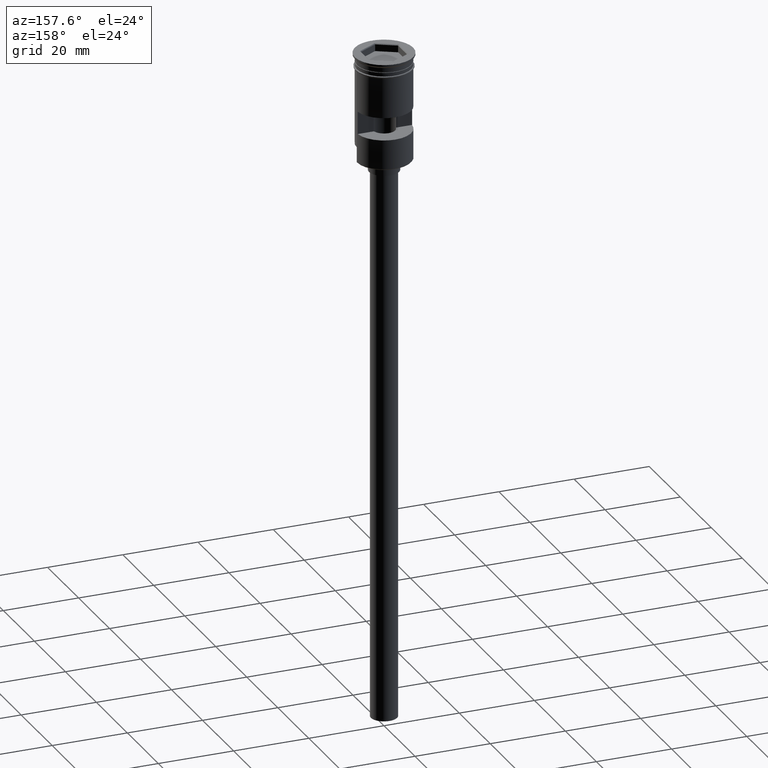
[diagram: clean part render]
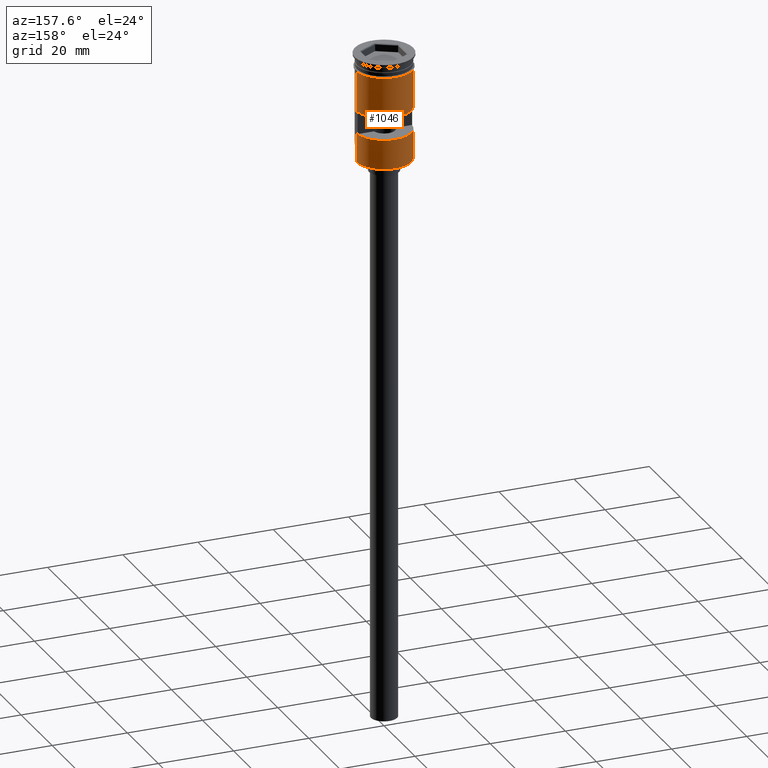
[diagram: same view with one face highlighted and labeled with its STEP entity id]
A machine part, auxiliary view. The second image highlights one B-rep face of the part: STEP entity #1046.
In plain terms, the highlighted cylindrical surface (edge-blend (fillet) strip) has radius 7.25 mm, axis along (-0, -0, 1).
Its self-contained STEP definition (entity closure, byte-faithful):
#1 = EDGE_CURVE ( 'NONE', #969, #769, #1553, .T. ) ;
#6 = AXIS2_PLACEMENT_3D ( 'NONE', #469, #112, #848 ) ;
#9 = DIRECTION ( 'NONE',  ( -0.000000000000000000, -0.000000000000000000, 1.000000000000000000 ) ) ;
#13 = ORIENTED_EDGE ( 'NONE', *, *, #301, .F. ) ;
#56 = CARTESIAN_POINT ( 'NONE',  ( 7.249999999999997335, 0.000000000000000000, 0.000000000000000000 ) ) ;
#90 = CARTESIAN_POINT ( 'NONE',  ( 7.225129756620288113, 0.5999999999999999778, 0.000000000000000000 ) ) ;
#112 = DIRECTION ( 'NONE',  ( -0.000000000000000000, -2.608606730792192361E-16, -1.000000000000000000 ) ) ;
#129 = CARTESIAN_POINT ( 'NONE',  ( 7.225129756620287225, 0.5999999999999999778, -20.50000000000000000 ) ) ;
#135 = EDGE_CURVE ( 'NONE', #1495, #332, #363, .T. ) ;
#136 = DIRECTION ( 'NONE',  ( -0.000000000000000000, -0.000000000000000000, 1.000000000000000000 ) ) ;
#156 = CYLINDRICAL_SURFACE ( 'NONE', #443, 7.249999999999997335 ) ;
#168 = ORIENTED_EDGE ( 'NONE', *, *, #881, .T. ) ;
#216 = AXIS2_PLACEMENT_3D ( 'NONE', #961, #730, #1211 ) ;
#218 = CARTESIAN_POINT ( 'NONE',  ( 7.249999999999994671, 8.878689293818304158E-16, -28.50000000000000000 ) ) ;
#229 = CARTESIAN_POINT ( 'NONE',  ( 7.225129756620287225, 0.5999999999999999778, -14.50000000000000178 ) ) ;
#231 = CARTESIAN_POINT ( 'NONE',  ( -7.249999999999994671, 0.000000000000000000, -24.29999999999999361 ) ) ;
#301 = EDGE_CURVE ( 'NONE', #769, #1163, #1253, .T. ) ;
#319 = CARTESIAN_POINT ( 'NONE',  ( -7.250000000000000000, 8.878689293818310074E-16, -3.799999999999998490 ) ) ;
#332 = VERTEX_POINT ( 'NONE', #1527 ) ;
#333 = DIRECTION ( 'NONE',  ( -0.000000000000000000, -0.000000000000000000, 1.000000000000000000 ) ) ;
#340 = LINE ( 'NONE', #723, #479 ) ;
#355 = DIRECTION ( 'NONE',  ( -0.000000000000000000, -0.000000000000000000, 1.000000000000000000 ) ) ;
#356 = ORIENTED_EDGE ( 'NONE', *, *, #135, .F. ) ;
#363 = LINE ( 'NONE', #1092, #1182 ) ;
#368 = LINE ( 'NONE', #218, #1426 ) ;
#374 = DIRECTION ( 'NONE',  ( 0.000000000000000000, 0.000000000000000000, -1.000000000000000000 ) ) ;
#399 = CARTESIAN_POINT ( 'NONE',  ( 0.000000000000000000, 0.000000000000000000, 0.000000000000000000 ) ) ;
#404 = ORIENTED_EDGE ( 'NONE', *, *, #521, .F. ) ;
#437 = EDGE_CURVE ( 'NONE', #1603, #969, #368, .T. ) ;
#443 = AXIS2_PLACEMENT_3D ( 'NONE', #399, #9, #1252 ) ;
#450 = EDGE_CURVE ( 'NONE', #1317, #1144, #1601, .T. ) ;
#469 = CARTESIAN_POINT ( 'NONE',  ( 0.000000000000000000, 0.000000000000000000, -14.50000000000000178 ) ) ;
#475 = VECTOR ( 'NONE', #355, 1000.000000000000000 ) ;
#479 = VECTOR ( 'NONE', #856, 1000.000000000000000 ) ;
#481 = CIRCLE ( 'NONE', #799, 7.249999999999997335 ) ;
#485 = ORIENTED_EDGE ( 'NONE', *, *, #1349, .F. ) ;
#491 = CARTESIAN_POINT ( 'NONE',  ( -7.249999999999994671, 0.000000000000000000, -28.29999999999999361 ) ) ;
#513 = FACE_OUTER_BOUND ( 'NONE', #885, .T. ) ;
#521 = EDGE_CURVE ( 'NONE', #332, #1317, #1208, .T. ) ;
#559 = CARTESIAN_POINT ( 'NONE',  ( 0.000000000000000000, 0.000000000000000000, -3.799999999999998490 ) ) ;
#622 = EDGE_CURVE ( 'NONE', #1554, #983, #1379, .T. ) ;
#632 = CIRCLE ( 'NONE', #216, 7.249999999999997335 ) ;
#660 = ORIENTED_EDGE ( 'NONE', *, *, #622, .T. ) ;
#723 = CARTESIAN_POINT ( 'NONE',  ( -7.249999999999997335, 8.878689293818306130E-16, 0.000000000000000000 ) ) ;
#730 = DIRECTION ( 'NONE',  ( -0.000000000000000000, -5.217213461584384723E-16, 1.000000000000000000 ) ) ;
#735 = DIRECTION ( 'NONE',  ( -0.000000000000000000, -0.000000000000000000, 1.000000000000000000 ) ) ;
#748 = EDGE_CURVE ( 'NONE', #1603, #1554, #481, .T. ) ;
#767 = VECTOR ( 'NONE', #136, 1000.000000000000000 ) ;
#769 = VERTEX_POINT ( 'NONE', #1538 ) ;
#790 = DIRECTION ( 'NONE',  ( 0.000000000000000000, 0.000000000000000000, 1.000000000000000000 ) ) ;
#799 = AXIS2_PLACEMENT_3D ( 'NONE', #1073, #790, #1421 ) ;
#814 = CARTESIAN_POINT ( 'NONE',  ( 7.249999999999994671, 8.878689293818304158E-16, -28.29999999999999361 ) ) ;
#848 = DIRECTION ( 'NONE',  ( 0.000000000000000000, -1.000000000000000000, 2.392722035830079465E-16 ) ) ;
#855 = VECTOR ( 'NONE', #374, 1000.000000000000000 ) ;
#856 = DIRECTION ( 'NONE',  ( -0.000000000000000000, -0.000000000000000000, 1.000000000000000000 ) ) ;
#857 = EDGE_LOOP ( 'NONE', ( #485, #967, #404, #356 ) ) ;
#869 = DIRECTION ( 'NONE',  ( -0.000000000000000000, -0.000000000000000000, 1.000000000000000000 ) ) ;
#881 = EDGE_CURVE ( 'NONE', #983, #1163, #340, .T. ) ;
#885 = EDGE_LOOP ( 'NONE', ( #660, #168, #13, #991, #1411, #1000 ) ) ;
#948 = AXIS2_PLACEMENT_3D ( 'NONE', #559, #333, #1518 ) ;
#961 = CARTESIAN_POINT ( 'NONE',  ( 0.000000000000000000, 0.000000000000000000, -20.50000000000000000 ) ) ;
#967 = ORIENTED_EDGE ( 'NONE', *, *, #450, .F. ) ;
#969 = VERTEX_POINT ( 'NONE', #1314 ) ;
#983 = VERTEX_POINT ( 'NONE', #231 ) ;
#991 = ORIENTED_EDGE ( 'NONE', *, *, #1, .F. ) ;
#1000 = ORIENTED_EDGE ( 'NONE', *, *, #748, .T. ) ;
#1003 = FACE_BOUND ( 'NONE', #857, .T. ) ;
#1046 = ADVANCED_FACE ( 'NONE', ( #1003, #513 ), #156, .T. ) ;
#1073 = CARTESIAN_POINT ( 'NONE',  ( 0.000000000000000000, 0.000000000000000000, -28.29999999999999361 ) ) ;
#1092 = CARTESIAN_POINT ( 'NONE',  ( -7.225129756620288113, 0.5999999999999999778, 0.000000000000000000 ) ) ;
#1135 = CARTESIAN_POINT ( 'NONE',  ( -7.249999999999994671, 0.000000000000000000, -28.50000000000000000 ) ) ;
#1144 = VERTEX_POINT ( 'NONE', #129 ) ;
#1163 = VERTEX_POINT ( 'NONE', #319 ) ;
#1182 = VECTOR ( 'NONE', #735, 1000.000000000000000 ) ;
#1208 = CIRCLE ( 'NONE', #6, 7.249999999999997335 ) ;
#1211 = DIRECTION ( 'NONE',  ( 0.000000000000000000, 1.000000000000000000, 4.785444071660158930E-16 ) ) ;
#1252 = DIRECTION ( 'NONE',  ( 1.000000000000000000, 0.000000000000000000, 0.000000000000000000 ) ) ;
#1253 = CIRCLE ( 'NONE', #948, 7.249999999999999112 ) ;
#1314 = CARTESIAN_POINT ( 'NONE',  ( 7.249999999999997335, 8.878689293818308102E-16, -24.29999999999999361 ) ) ;
#1317 = VERTEX_POINT ( 'NONE', #229 ) ;
#1349 = EDGE_CURVE ( 'NONE', #1144, #1495, #632, .T. ) ;
#1379 = LINE ( 'NONE', #1135, #767 ) ;
#1381 = CARTESIAN_POINT ( 'NONE',  ( -7.225129756620288113, 0.5999999999999999778, -20.50000000000000000 ) ) ;
#1411 = ORIENTED_EDGE ( 'NONE', *, *, #437, .F. ) ;
#1421 = DIRECTION ( 'NONE',  ( -1.000000000000000000, 0.000000000000000000, 0.000000000000000000 ) ) ;
#1426 = VECTOR ( 'NONE', #869, 1000.000000000000000 ) ;
#1495 = VERTEX_POINT ( 'NONE', #1381 ) ;
#1518 = DIRECTION ( 'NONE',  ( 1.000000000000000000, 0.000000000000000000, 0.000000000000000000 ) ) ;
#1527 = CARTESIAN_POINT ( 'NONE',  ( -7.225129756620288113, 0.5999999999999999778, -14.50000000000000178 ) ) ;
#1538 = CARTESIAN_POINT ( 'NONE',  ( 7.249999999999999112, 0.000000000000000000, -3.799999999999998490 ) ) ;
#1553 = LINE ( 'NONE', #56, #475 ) ;
#1554 = VERTEX_POINT ( 'NONE', #491 ) ;
#1601 = LINE ( 'NONE', #90, #855 ) ;
#1603 = VERTEX_POINT ( 'NONE', #814 ) ;